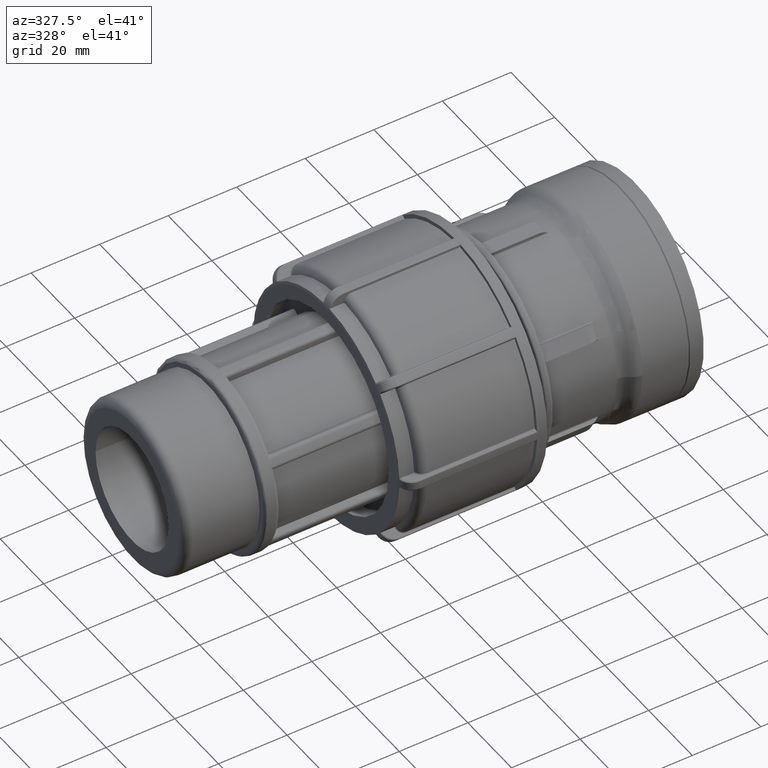
[diagram: clean part render]
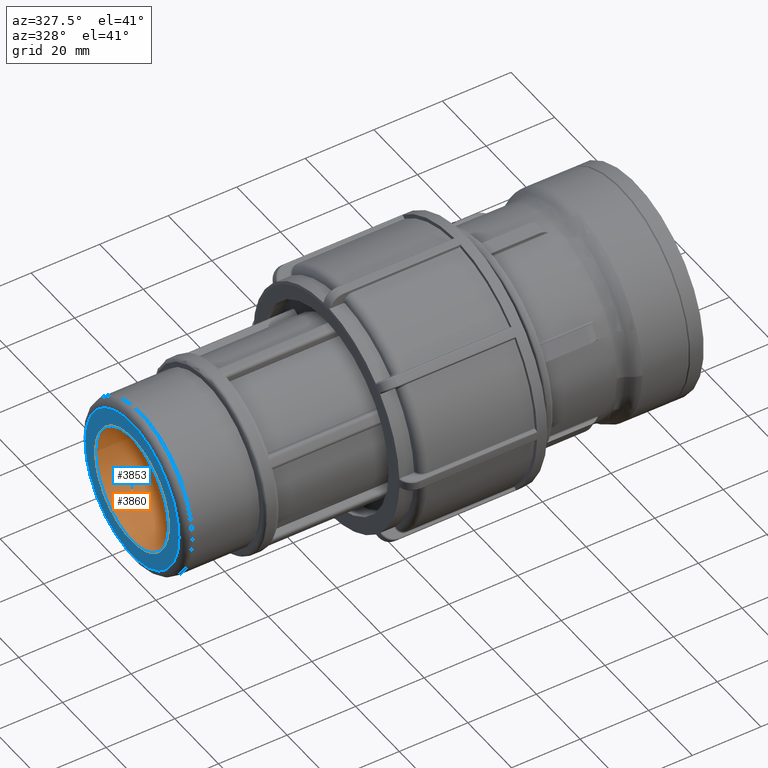
[diagram: same view with the hole feature highlighted: cylindrical wall and planar end face, labeled with their STEP entity ids]
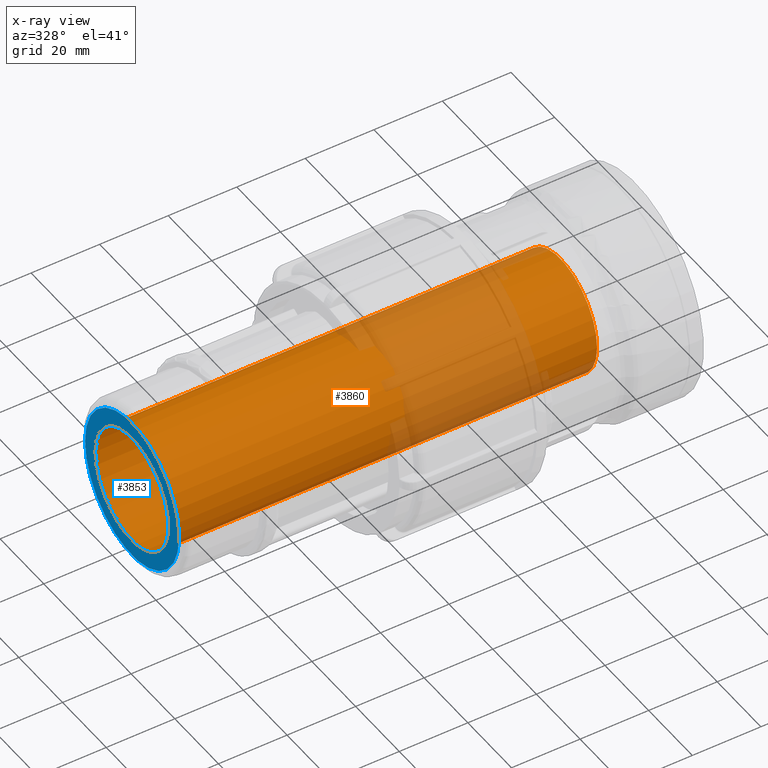
[diagram: x-ray of the same camera — body ghosted, the hole faces saturated]
A machine part, auxiliary view. The highlighted faces form one hole feature of diameter 33.462 mm: the cylindrical wall (entity #3860, orange) and its adjacent planar end face (entity #3853, blue) — they share a circular edge in the B-rep.
The next image is the same camera in x-ray (body ghosted, the hole faces saturated) — the bore reads through the body.
Wall:
#77=FACE_BOUND('',#1136,.T.);
#669=CYLINDRICAL_SURFACE('',#4258,16.73105);
#888=FACE_OUTER_BOUND('',#1135,.T.);
#1135=EDGE_LOOP('',(#3609));
#1136=EDGE_LOOP('',(#3610));
#1500=CIRCLE('',#4248,16.73105);
#1503=CIRCLE('',#4257,16.73105);
#1888=VERTEX_POINT('',#8345);
#1891=VERTEX_POINT('',#8357);
#2464=EDGE_CURVE('',#1888,#1888,#1500,.T.);
#2467=EDGE_CURVE('',#1891,#1891,#1503,.T.);
#3609=ORIENTED_EDGE('',*,*,#2467,.T.);
#3610=ORIENTED_EDGE('',*,*,#2464,.F.);
#3860=ADVANCED_FACE('',(#888,#77),#669,.F.);
#4248=AXIS2_PLACEMENT_3D('',#8346,#5243,#5244);
#4257=AXIS2_PLACEMENT_3D('',#8358,#5261,#5262);
#4258=AXIS2_PLACEMENT_3D('',#8359,#5263,#5264);
#5243=DIRECTION('center_axis',(1.,0.,0.));
#5244=DIRECTION('ref_axis',(0.,0.,-1.));
#5261=DIRECTION('center_axis',(1.,0.,0.));
#5262=DIRECTION('ref_axis',(0.,0.,-1.));
#5263=DIRECTION('center_axis',(1.,0.,0.));
#5264=DIRECTION('ref_axis',(0.,1.,0.));
#8345=CARTESIAN_POINT('',(-147.,16.73105,0.));
#8346=CARTESIAN_POINT('Origin',(-147.,0.,0.));
#8357=CARTESIAN_POINT('',(-22.,16.73105,0.));
#8358=CARTESIAN_POINT('Origin',(-22.,0.,0.));
#8359=CARTESIAN_POINT('Origin',(-84.5,0.,0.));
End face:
#71=FACE_BOUND('',#1123,.T.);
#146=PLANE('',#4247);
#881=FACE_OUTER_BOUND('',#1122,.T.);
#1122=EDGE_LOOP('',(#3593));
#1123=EDGE_LOOP('',(#3594));
#1498=CIRCLE('',#4245,21.51135);
#1500=CIRCLE('',#4248,16.73105);
#1886=VERTEX_POINT('',#8340);
#1888=VERTEX_POINT('',#8345);
#2462=EDGE_CURVE('',#1886,#1886,#1498,.T.);
#2464=EDGE_CURVE('',#1888,#1888,#1500,.T.);
#3593=ORIENTED_EDGE('',*,*,#2462,.F.);
#3594=ORIENTED_EDGE('',*,*,#2464,.T.);
#3853=ADVANCED_FACE('',(#881,#71),#146,.T.);
#4245=AXIS2_PLACEMENT_3D('',#8341,#5237,#5238);
#4247=AXIS2_PLACEMENT_3D('',#8344,#5241,#5242);
#4248=AXIS2_PLACEMENT_3D('',#8346,#5243,#5244);
#5237=DIRECTION('center_axis',(1.,0.,0.));
#5238=DIRECTION('ref_axis',(0.,-1.,1.83697019872103E-16));
#5241=DIRECTION('center_axis',(-1.,0.,0.));
#5242=DIRECTION('ref_axis',(0.,0.,1.));
#5243=DIRECTION('center_axis',(1.,0.,0.));
#5244=DIRECTION('ref_axis',(0.,0.,-1.));
#8340=CARTESIAN_POINT('',(-147.,21.51135,-1.31719029614192E-15));
#8341=CARTESIAN_POINT('Origin',(-147.,0.,0.));
#8344=CARTESIAN_POINT('Origin',(-147.,23.9015,0.));
#8345=CARTESIAN_POINT('',(-147.,16.73105,0.));
#8346=CARTESIAN_POINT('Origin',(-147.,0.,0.));